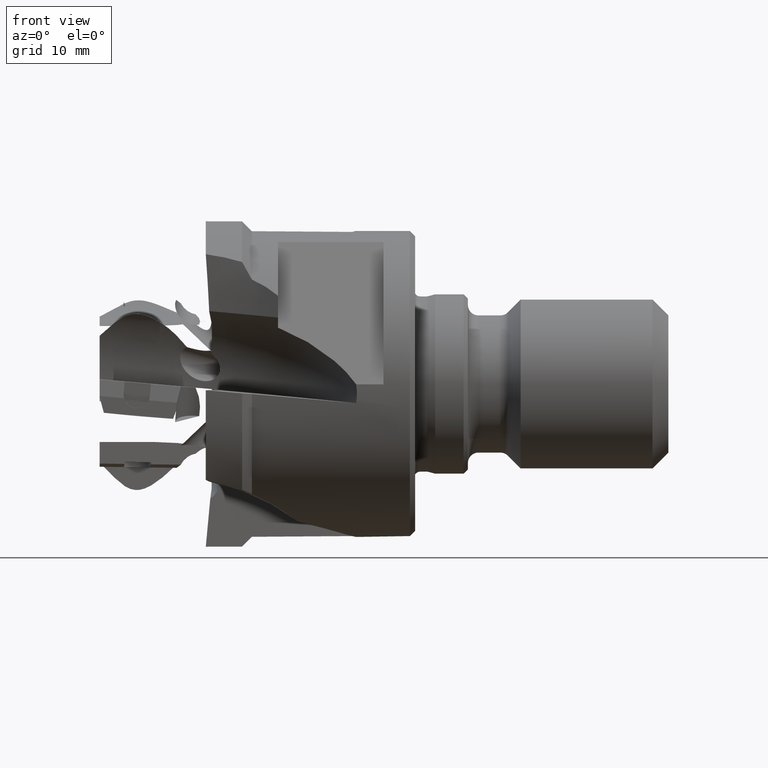
[diagram: clean part render]
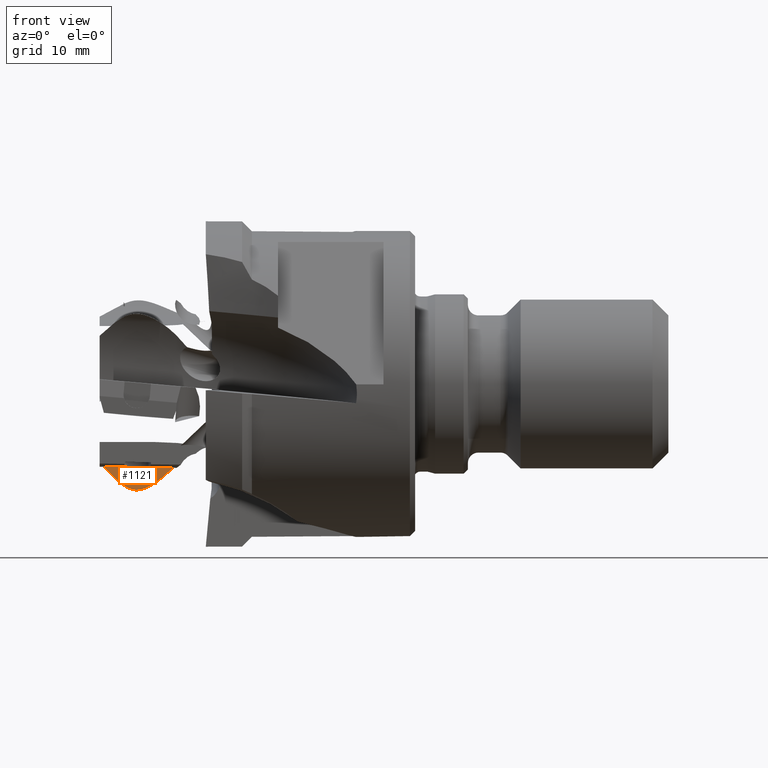
[diagram: same view with one face highlighted and labeled with its STEP entity id]
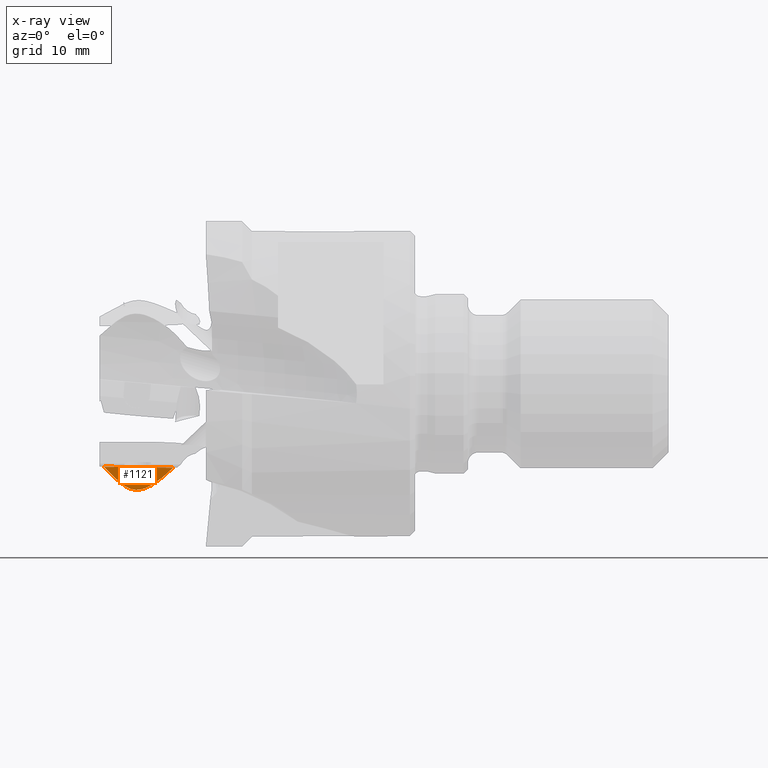
[diagram: x-ray of the same camera — body ghosted, the highlighted face saturated]
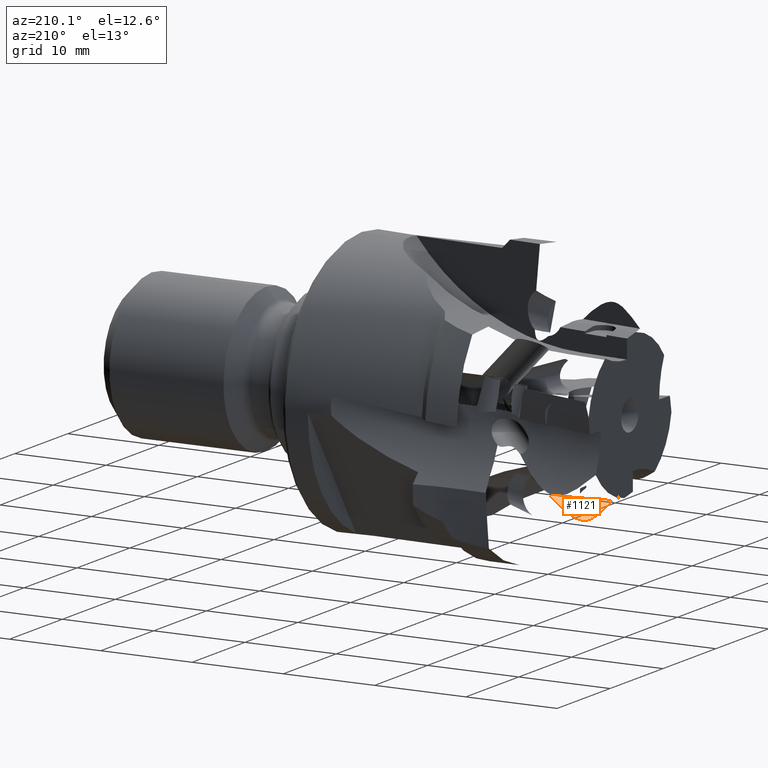
[diagram: same view with one face highlighted and labeled with its STEP entity id]
A machine part, front view. The second image highlights one B-rep face of the part: STEP entity #1121.
The next image is the same camera in x-ray: the body ghosted, the highlighted face saturated — about 0% of this face is hidden behind the body in this view.
A second angle (auxiliary view) of the same face is appended — the face is thin or edge-on in the first view.
In plain terms, the highlighted planar face has unit normal (0.0872, -0.9962, -0).
Its self-contained STEP definition (entity closure, byte-faithful):
#21 = VERTEX_POINT ( 'NONE', #4329 ) ;
#66 = CARTESIAN_POINT ( 'NONE',  ( 6.312812845622110200, 3.021634636529415100, -9.345848848830174300 ) ) ;
#82 = CARTESIAN_POINT ( 'NONE',  ( 3.075870239229177000, 2.738438853985977400, -9.493630348421975300 ) ) ;
#479 = CARTESIAN_POINT ( 'NONE',  ( 5.888690829985398200, 2.984528768209446800, -9.614785224000499400 ) ) ;
#493 = CARTESIAN_POINT ( 'NONE',  ( 2.330265648111584700, 2.673206904790308400, -8.814254675795886800 ) ) ;
#680 = PLANE ( 'NONE',  #725 ) ;
#725 = AXIS2_PLACEMENT_3D ( 'NONE', #1096, #4756, #2326 ) ;
#892 = CARTESIAN_POINT ( 'NONE',  ( 5.437609642825952600, 2.945064278003185300, -9.842808776160680400 ) ) ;
#901 = CARTESIAN_POINT ( 'NONE',  ( 1.637274690632571500, 2.612578052084914200, -8.081279850492730800 ) ) ;
#1096 = CARTESIAN_POINT ( 'NONE',  ( -3.490733628559999200, 2.163935457688932900, -7.777708052247731100 ) ) ;
#1121 = ADVANCED_FACE ( 'NONE', ( #4565 ), #680, .T. ) ;
#1306 = CARTESIAN_POINT ( 'NONE',  ( 4.959035734338652200, 2.903194486351254400, -10.00401453059117600 ) ) ;
#1625 = ORIENTED_EDGE ( 'NONE', *, *, #5102, .T. ) ;
#1649 = ORIENTED_EDGE ( 'NONE', *, *, #2274, .F. ) ;
#1708 = CARTESIAN_POINT ( 'NONE',  ( 7.959050653711293500, 3.165661782204983100, -7.942211101025496800 ) ) ;
#1725 = CARTESIAN_POINT ( 'NONE',  ( 4.459322871141488100, 2.859475275803413200, -10.05750200884412100 ) ) ;
#2126 = CARTESIAN_POINT ( 'NONE',  ( 3.961546613522656000, 2.815925496289409100, -9.970163562862383700 ) ) ;
#2174 = CARTESIAN_POINT ( 'NONE',  ( -3.490733628559999200, 2.163935457688932900, -7.777708052247731100 ) ) ;
#2274 = EDGE_CURVE ( 'NONE', #2848, #21, #3813, .T. ) ;
#2326 = DIRECTION ( 'NONE',  ( -0.9961946980917455500, -0.08715574274765840200, -6.086052987529241100E-016 ) ) ;
#2511 = CARTESIAN_POINT ( 'NONE',  ( 6.988853567595832300, 3.080780535783994400, -8.859291427331374500 ) ) ;
#2525 = LINE ( 'NONE', #2174, #4895 ) ;
#2526 = CARTESIAN_POINT ( 'NONE',  ( 3.346785996564922300, 2.762140911523398600, -9.693397089482321100 ) ) ;
#2848 = VERTEX_POINT ( 'NONE', #4377 ) ;
#2911 = CARTESIAN_POINT ( 'NONE',  ( 6.174421941463399400, 3.009527001280432000, -9.439203202157076000 ) ) ;
#2924 = CARTESIAN_POINT ( 'NONE',  ( 2.566229614654740300, 2.693851076863438700, -9.053519599097423800 ) ) ;
#3316 = CARTESIAN_POINT ( 'NONE',  ( 5.740707283674201000, 2.971581885518856900, -9.697336468174739800 ) ) ;
#3330 = CARTESIAN_POINT ( 'NONE',  ( 1.865185703429744500, 2.632517681997379900, -8.328748569416831100 ) ) ;
#3737 = CARTESIAN_POINT ( 'NONE',  ( 5.282130770405978600, 2.931461639248643900, -9.906182309788954800 ) ) ;
#3751 = CARTESIAN_POINT ( 'NONE',  ( 1.395523440592414200, 2.591427558313177400, -7.847910613732682200 ) ) ;
#3813 = B_SPLINE_CURVE_WITH_KNOTS ( 'NONE', 3,
 ( #1708, #4129, #2511, #66, #2911, #479, #3316, #892, #3737, #1306, #4144, #1725, #4545, #2126, #4972, #2526, #82, #2924, #493, #3330, #901, #3751 ),
 .UNSPECIFIED., .F., .F.,
 ( 4, 2, 2, 2, 2, 2, 2, 2, 2, 2, 4 ),
 ( 0.0002028058693882337900, 0.002203589631784389300, 0.002703785572383427800, 0.003203981512982466200, 0.003704177453581505200, 0.004204373394180543200, 0.004704569334779582100, 0.005204765275378621000, 0.006205157156576694500, 0.007205549037774768000, 0.008205940918972840600 ),
 .UNSPECIFIED. ) ;
#4129 = CARTESIAN_POINT ( 'NONE',  ( 7.482132892761511800, 3.123936884687713800, -8.410922445373866900 ) ) ;
#4144 = CARTESIAN_POINT ( 'NONE',  ( 4.793623433311450900, 2.888722785203627900, -10.03758110227064500 ) ) ;
#4329 = CARTESIAN_POINT ( 'NONE',  ( 1.395523440592414200, 2.591427558313177400, -7.847910613732682200 ) ) ;
#4377 = CARTESIAN_POINT ( 'NONE',  ( 7.959050653711293500, 3.165661782204983100, -7.942211101025496800 ) ) ;
#4545 = CARTESIAN_POINT ( 'NONE',  ( 4.288241854103849200, 2.844507626268137500, -10.04285295046246400 ) ) ;
#4565 = FACE_OUTER_BOUND ( 'NONE', #4847, .T. ) ;
#4756 = DIRECTION ( 'NONE',  ( 0.08715574274765840200, -0.9961946980917455500, -6.953786662689431500E-015 ) ) ;
#4847 = EDGE_LOOP ( 'NONE', ( #1649, #1625 ) ) ;
#4895 = VECTOR ( 'NONE', #5030, 1000.000000000000100 ) ;
#4972 = CARTESIAN_POINT ( 'NONE',  ( 3.801635259363168400, 2.801935065631370400, -9.911863736551779900 ) ) ;
#5030 = DIRECTION ( 'NONE',  ( -0.9960926771666104300, -0.08714681707326675500, 0.01431121130629120200 ) ) ;
#5102 = EDGE_CURVE ( 'NONE', #2848, #21, #2525, .T. ) ;